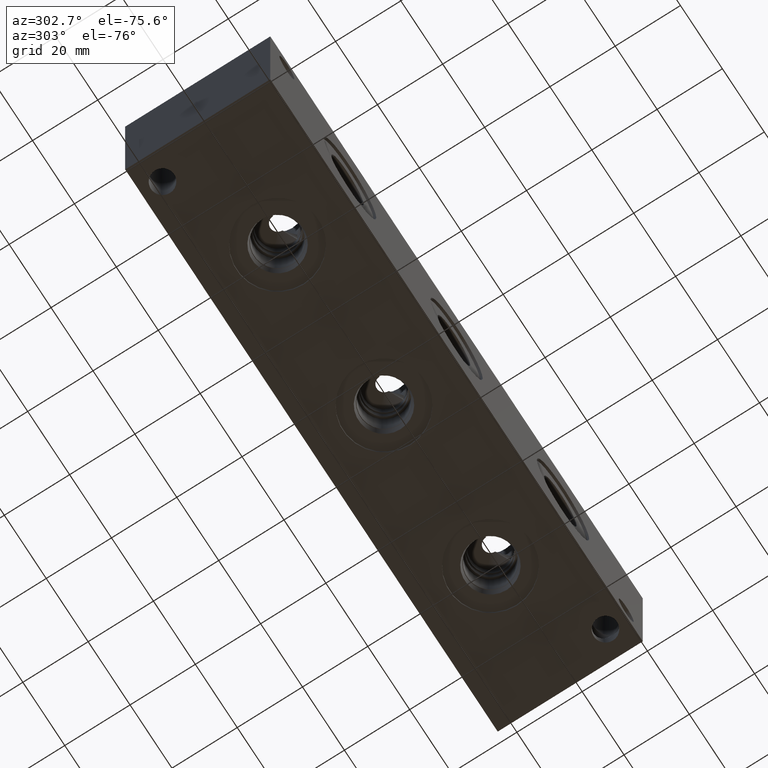
[diagram: clean part render]
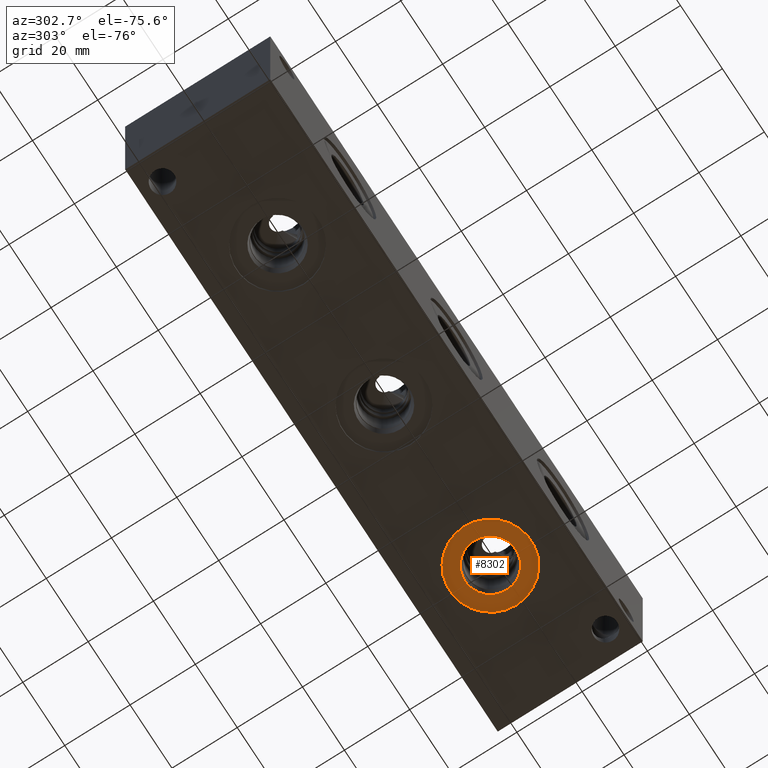
[diagram: same view with one face highlighted and labeled with its STEP entity id]
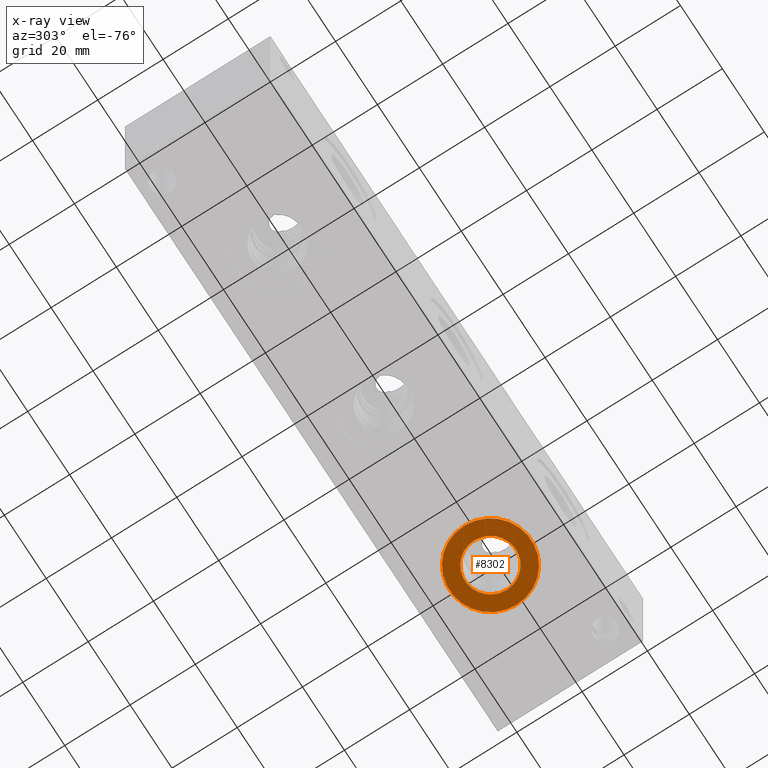
[diagram: x-ray of the same camera — body ghosted, the highlighted face saturated]
A machine part, auxiliary view. The second image highlights one B-rep face of the part: STEP entity #8302.
The next image is the same camera in x-ray: the body ghosted, the highlighted face saturated — about 0% of this face is hidden behind the body in this view.
In plain terms, the highlighted planar face has unit normal (0, 0, 1).
Its self-contained STEP definition (entity closure, byte-faithful):
#149=CIRCLE('',#8651,12.5095);
#150=CIRCLE('',#8652,12.5095);
#151=CIRCLE('',#8654,7.79780000000001);
#152=CIRCLE('',#8655,7.79780000000001);
#354=FACE_BOUND('',#1394,.T.);
#585=PLANE('',#8653);
#925=FACE_OUTER_BOUND('',#1393,.T.);
#1393=EDGE_LOOP('',(#6948,#6949));
#1394=EDGE_LOOP('',(#6950,#6951));
#3823=VERTEX_POINT('',#14030);
#3824=VERTEX_POINT('',#14032);
#3825=VERTEX_POINT('',#14036);
#3826=VERTEX_POINT('',#14037);
#4898=EDGE_CURVE('',#3823,#3824,#149,.T.);
#4899=EDGE_CURVE('',#3824,#3823,#150,.T.);
#4900=EDGE_CURVE('',#3825,#3826,#151,.T.);
#4901=EDGE_CURVE('',#3826,#3825,#152,.T.);
#6948=ORIENTED_EDGE('',*,*,#4899,.F.);
#6949=ORIENTED_EDGE('',*,*,#4898,.F.);
#6950=ORIENTED_EDGE('',*,*,#4900,.T.);
#6951=ORIENTED_EDGE('',*,*,#4901,.T.);
#8302=ADVANCED_FACE('',(#925,#354),#585,.F.);
#8651=AXIS2_PLACEMENT_3D('',#14033,#10045,#10046);
#8652=AXIS2_PLACEMENT_3D('',#14034,#10047,#10048);
#8653=AXIS2_PLACEMENT_3D('',#14035,#10049,#10050);
#8654=AXIS2_PLACEMENT_3D('',#14038,#10051,#10052);
#8655=AXIS2_PLACEMENT_3D('',#14039,#10053,#10054);
#10045=DIRECTION('center_axis',(0.,0.,1.));
#10046=DIRECTION('ref_axis',(1.,0.,0.));
#10047=DIRECTION('center_axis',(0.,0.,1.));
#10048=DIRECTION('ref_axis',(1.,0.,0.));
#10049=DIRECTION('center_axis',(0.,0.,1.));
#10050=DIRECTION('ref_axis',(1.,0.,0.));
#10051=DIRECTION('center_axis',(0.,0.,1.));
#10052=DIRECTION('ref_axis',(1.,0.,0.));
#10053=DIRECTION('center_axis',(0.,0.,1.));
#10054=DIRECTION('ref_axis',(1.,0.,0.));
#14030=CARTESIAN_POINT('',(127.1905,22.225,0.7874));
#14032=CARTESIAN_POINT('',(152.2095,22.225,0.7874));
#14033=CARTESIAN_POINT('Origin',(139.7,22.225,0.7874));
#14034=CARTESIAN_POINT('Origin',(139.7,22.225,0.7874));
#14035=CARTESIAN_POINT('Origin',(147.4978,22.225,0.7874));
#14036=CARTESIAN_POINT('',(147.4978,22.225,0.7874));
#14037=CARTESIAN_POINT('',(131.9022,22.225,0.787399999999998));
#14038=CARTESIAN_POINT('Origin',(139.7,22.225,0.7874));
#14039=CARTESIAN_POINT('Origin',(139.7,22.225,0.7874));